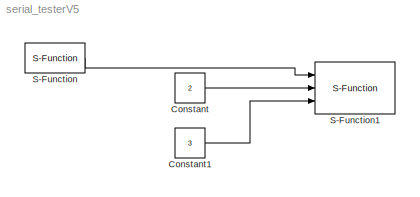
MODEL serial_testerV5
KIND model
BLOCK [Constant] Constant
  OutDataType = fixdt(1, 16)
  OutDataTypeMode = int32
  OutDataTypeStr = int32
  OutScaling = 2^0
  Value = 2
BLOCK [Constant] Constant1
  OutDataType = fixdt(1, 16)
  OutDataTypeMode = int32
  OutDataTypeStr = int32
  OutScaling = 2^0
  Value = 3
BLOCK [S-Function] S-Function
  EnableBusSupport = off
  FunctionName = myReceiver2
  Ports = [0, 1]
  Priority = 1
BLOCK [S-Function] S-Function1
  EnableBusSupport = off
  FunctionName = serialSend
  Ports = [3]
  Priority = 2
LINE Constant1:1 -> S-Function1:3
LINE Constant:1 -> S-Function1:2
LINE S-Function:1 -> S-Function1:1
